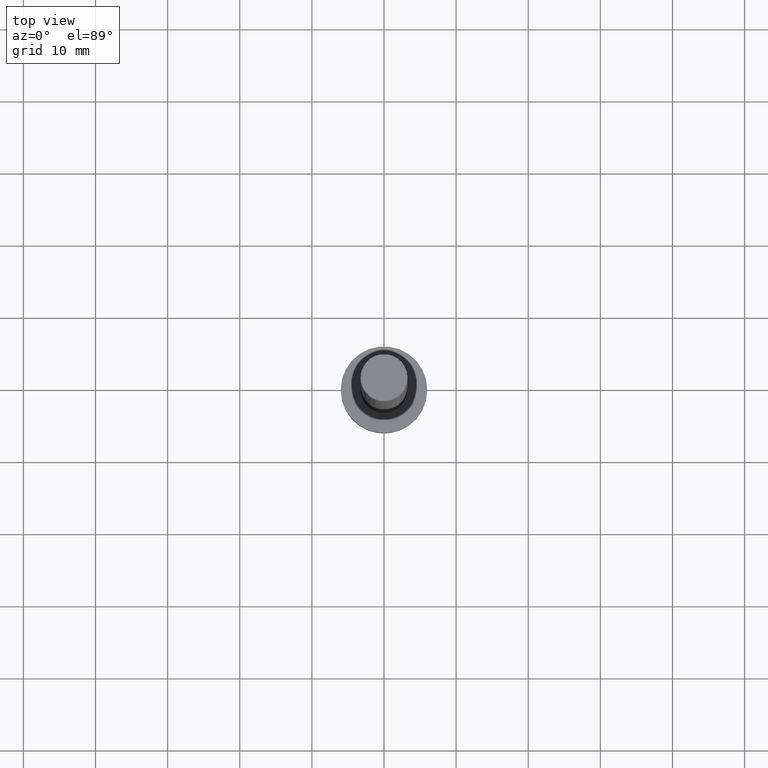
[diagram: clean part render]
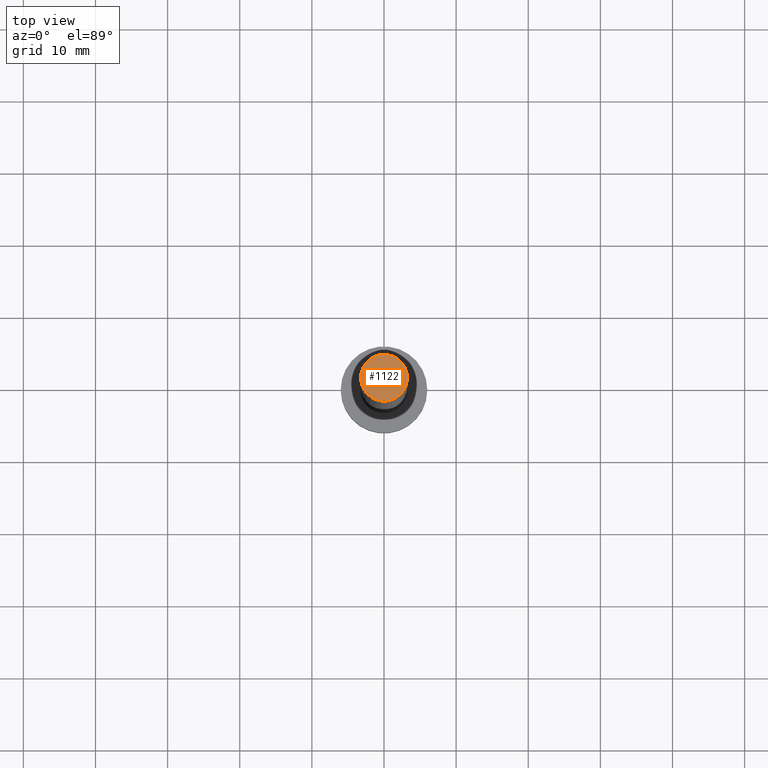
[diagram: same view with one face highlighted and labeled with its STEP entity id]
A machine part, top view. The second image highlights one B-rep face of the part: STEP entity #1122.
In plain terms, the highlighted planar face has unit normal (0, 0, 1).
Its self-contained STEP definition (entity closure, byte-faithful):
#250 = FACE_OUTER_BOUND ( 'NONE', #1220, .T. ) ;
#370 = DIRECTION ( 'NONE',  ( 1.000000000000000000, 0.000000000000000000, -0.000000000000000000 ) ) ;
#407 = CARTESIAN_POINT ( 'NONE',  ( 0.000000000000000000, 0.000000000000000000, 100.0000000000000000 ) ) ;
#409 = CIRCLE ( 'NONE', #1431, 3.250000000000000444 ) ;
#507 = DIRECTION ( 'NONE',  ( 1.000000000000000000, 0.000000000000000000, 0.000000000000000000 ) ) ;
#595 = CARTESIAN_POINT ( 'NONE',  ( 0.000000000000000000, 0.000000000000000000, 100.0000000000000000 ) ) ;
#646 = CIRCLE ( 'NONE', #1362, 3.250000000000000444 ) ;
#706 = CARTESIAN_POINT ( 'NONE',  ( 0.000000000000000000, 0.000000000000000000, 100.0000000000000000 ) ) ;
#714 = CARTESIAN_POINT ( 'NONE',  ( 3.250000000000000444, 3.980102097228898231E-16, 100.0000000000000000 ) ) ;
#819 = DIRECTION ( 'NONE',  ( 1.000000000000000000, 0.000000000000000000, 0.000000000000000000 ) ) ;
#939 = PLANE ( 'NONE',  #1263 ) ;
#985 = ORIENTED_EDGE ( 'NONE', *, *, #1192, .T. ) ;
#1048 = ORIENTED_EDGE ( 'NONE', *, *, #1138, .T. ) ;
#1065 = DIRECTION ( 'NONE',  ( 0.000000000000000000, 0.000000000000000000, 1.000000000000000000 ) ) ;
#1076 = CARTESIAN_POINT ( 'NONE',  ( -3.250000000000000444, 0.000000000000000000, 100.0000000000000000 ) ) ;
#1122 = ADVANCED_FACE ( 'NONE', ( #250 ), #939, .T. ) ;
#1138 = EDGE_CURVE ( 'NONE', #1143, #1259, #646, .T. ) ;
#1143 = VERTEX_POINT ( 'NONE', #714 ) ;
#1166 = DIRECTION ( 'NONE',  ( 0.000000000000000000, 0.000000000000000000, 1.000000000000000000 ) ) ;
#1192 = EDGE_CURVE ( 'NONE', #1259, #1143, #409, .T. ) ;
#1220 = EDGE_LOOP ( 'NONE', ( #985, #1048 ) ) ;
#1259 = VERTEX_POINT ( 'NONE', #1076 ) ;
#1263 = AXIS2_PLACEMENT_3D ( 'NONE', #595, #1065, #370 ) ;
#1328 = DIRECTION ( 'NONE',  ( 0.000000000000000000, 0.000000000000000000, 1.000000000000000000 ) ) ;
#1362 = AXIS2_PLACEMENT_3D ( 'NONE', #706, #1166, #819 ) ;
#1431 = AXIS2_PLACEMENT_3D ( 'NONE', #407, #1328, #507 ) ;